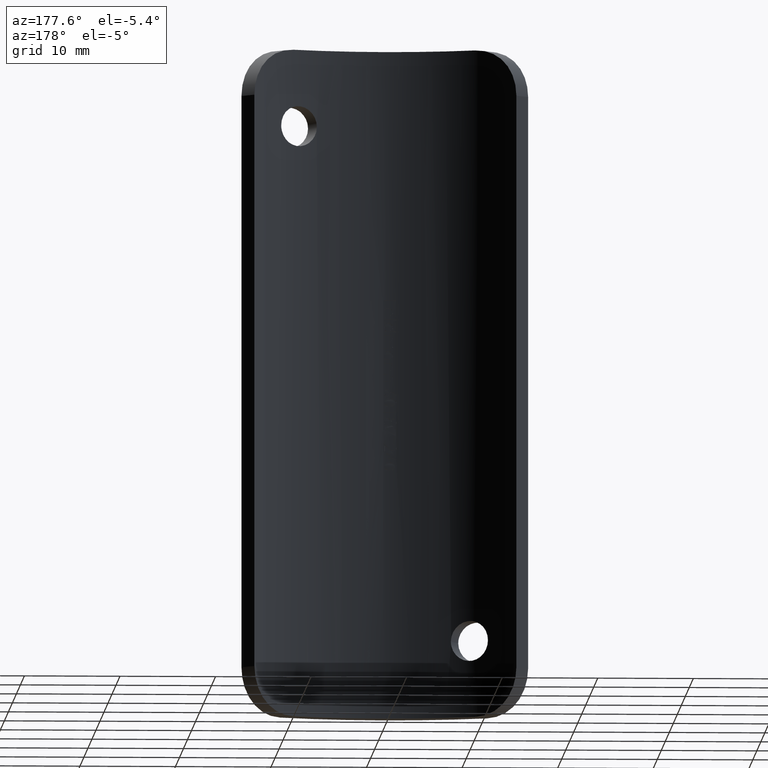
[diagram: clean part render]
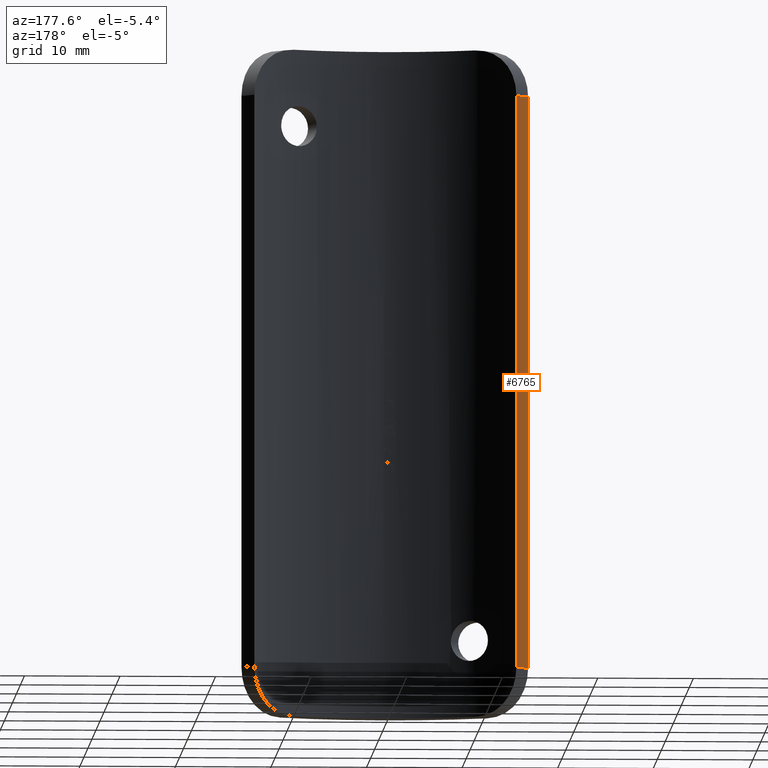
[diagram: same view with one face highlighted and labeled with its STEP entity id]
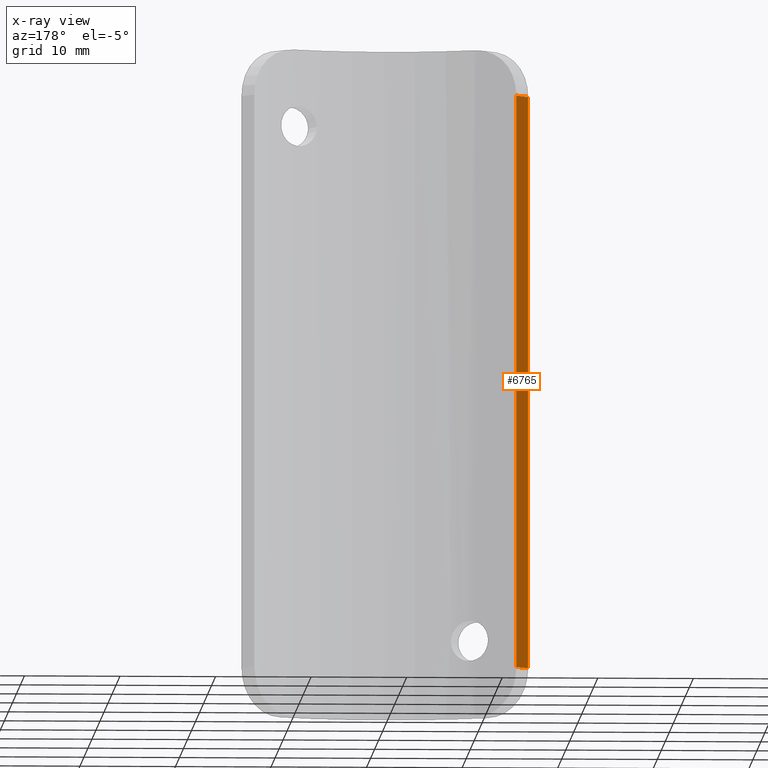
[diagram: x-ray of the same camera — body ghosted, the highlighted face saturated]
A machine part, auxiliary view. The second image highlights one B-rep face of the part: STEP entity #6765.
The next image is the same camera in x-ray: the body ghosted, the highlighted face saturated — about 0% of this face is hidden behind the body in this view.
In plain terms, the highlighted planar face has unit normal (0.7629, -0.6466, 0).
Its self-contained STEP definition (entity closure, byte-faithful):
#324 = LINE ( 'NONE', #3423, #8272 ) ;
#392 = DIRECTION ( 'NONE',  ( 0.6465517241379309400, 0.7628701514768215800, -0.0000000000000000000 ) ) ;
#1116 = PLANE ( 'NONE',  #2738 ) ;
#1360 = CARTESIAN_POINT ( 'NONE',  ( -13.70689655172413700, 7.027152788691378000, 35.00000000000000000 ) ) ;
#1749 = ORIENTED_EDGE ( 'NONE', *, *, #2066, .F. ) ;
#2066 = EDGE_CURVE ( 'NONE', #6401, #10739, #10256, .T. ) ;
#2114 = EDGE_LOOP ( 'NONE', ( #8053, #8387, #1749, #2717 ) ) ;
#2243 = CARTESIAN_POINT ( 'NONE',  ( -15.00000000000000000, 5.501412485737739100, 30.00000000000000400 ) ) ;
#2717 = ORIENTED_EDGE ( 'NONE', *, *, #5515, .T. ) ;
#2738 = AXIS2_PLACEMENT_3D ( 'NONE', #4632, #3703, #2901 ) ;
#2901 = DIRECTION ( 'NONE',  ( 0.6465517241379309400, 0.7628701514768215800, 0.0000000000000000000 ) ) ;
#3423 = CARTESIAN_POINT ( 'NONE',  ( -15.00000000000000000, 5.501412485737739100, -30.00000000000000000 ) ) ;
#3703 = DIRECTION ( 'NONE',  ( 0.7628701514768216900, -0.6465517241379310500, 0.0000000000000000000 ) ) ;
#4096 = DIRECTION ( 'NONE',  ( -0.0000000000000000000, -0.0000000000000000000, -1.000000000000000000 ) ) ;
#4515 = VERTEX_POINT ( 'NONE', #6208 ) ;
#4632 = CARTESIAN_POINT ( 'NONE',  ( -15.00000000000000000, 5.501412485737739100, 35.00000000000000000 ) ) ;
#4762 = VECTOR ( 'NONE', #11120, 1000.000000000000000 ) ;
#4777 = LINE ( 'NONE', #5696, #11354 ) ;
#4893 = FACE_OUTER_BOUND ( 'NONE', #2114, .T. ) ;
#5259 = DIRECTION ( 'NONE',  ( -0.6465517241379309400, -0.7628701514768215800, 0.0000000000000000000 ) ) ;
#5515 = EDGE_CURVE ( 'NONE', #6401, #11066, #4777, .T. ) ;
#5696 = CARTESIAN_POINT ( 'NONE',  ( -13.70689655172414400, 7.027152788691375400, 30.00000000000000400 ) ) ;
#6208 = CARTESIAN_POINT ( 'NONE',  ( -13.70689655172413700, 7.027152788691378000, -30.00000000000000000 ) ) ;
#6401 = VERTEX_POINT ( 'NONE', #2243 ) ;
#6758 = CARTESIAN_POINT ( 'NONE',  ( -15.00000000000000000, 5.501412485737739100, 35.00000000000000000 ) ) ;
#6765 = ADVANCED_FACE ( 'NONE', ( #4893 ), #1116, .F. ) ;
#8053 = ORIENTED_EDGE ( 'NONE', *, *, #9356, .T. ) ;
#8055 = EDGE_CURVE ( 'NONE', #4515, #10739, #324, .T. ) ;
#8272 = VECTOR ( 'NONE', #5259, 1000.000000000000200 ) ;
#8387 = ORIENTED_EDGE ( 'NONE', *, *, #8055, .T. ) ;
#9171 = CARTESIAN_POINT ( 'NONE',  ( -15.00000000000000000, 5.501412485737739100, -30.00000000000000000 ) ) ;
#9356 = EDGE_CURVE ( 'NONE', #11066, #4515, #10933, .T. ) ;
#10256 = LINE ( 'NONE', #6758, #11103 ) ;
#10617 = CARTESIAN_POINT ( 'NONE',  ( -13.70689655172413700, 7.027152788691378000, 30.00000000000000400 ) ) ;
#10739 = VERTEX_POINT ( 'NONE', #9171 ) ;
#10933 = LINE ( 'NONE', #1360, #4762 ) ;
#11066 = VERTEX_POINT ( 'NONE', #10617 ) ;
#11103 = VECTOR ( 'NONE', #4096, 1000.000000000000000 ) ;
#11120 = DIRECTION ( 'NONE',  ( -0.0000000000000000000, -0.0000000000000000000, -1.000000000000000000 ) ) ;
#11354 = VECTOR ( 'NONE', #392, 1000.000000000000200 ) ;